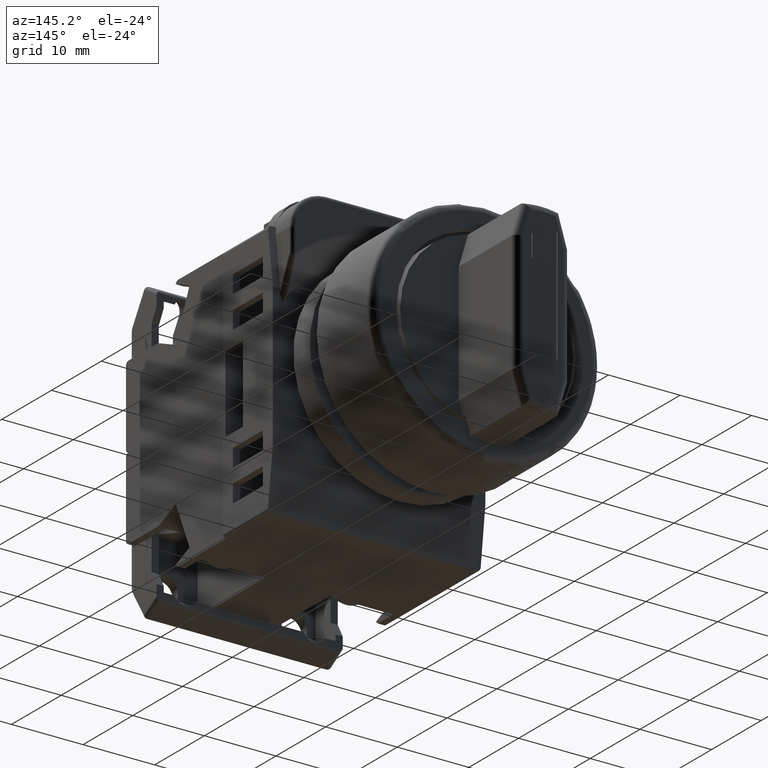
[diagram: clean part render]
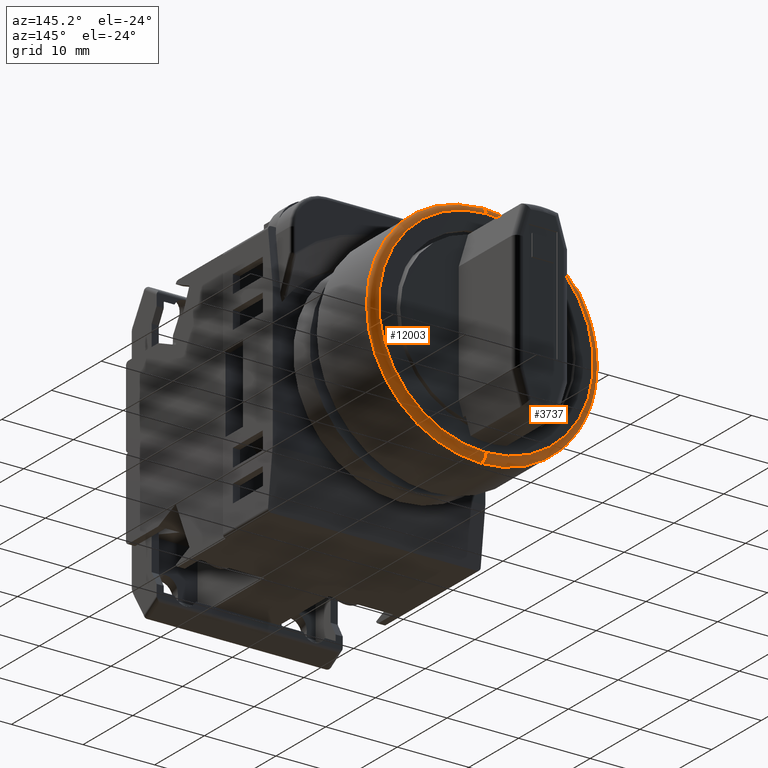
[diagram: same view with one multi-face feature highlighted, each face labeled with its STEP entity id]
A machine part, auxiliary view. The highlighted faces form ONE feature: a constant-radius fillet chain: 2 tangent blend faces with common blend radius 1 mm. The faces share edges in the B-rep.
Their STEP definitions:
[1] entity #12003 (Torus):
#864 = ORIENTED_EDGE ( 'NONE', *, *, #9992, .F. ) ;
#964 = DIRECTION ( 'NONE',  ( 0.0000000000000000000, 0.0000000000000000000, -1.000000000000000000 ) ) ;
#1444 = VERTEX_POINT ( 'NONE', #2968 ) ;
#1462 = ORIENTED_EDGE ( 'NONE', *, *, #4716, .F. ) ;
#1672 = ORIENTED_EDGE ( 'NONE', *, *, #16797, .F. ) ;
#2095 = CARTESIAN_POINT ( 'NONE',  ( 0.0000000000000000000, 9.999999999999998200, -16.00000000000000000 ) ) ;
#2968 = CARTESIAN_POINT ( 'NONE',  ( 1.898202538678397200E-015, 11.00000000000000000, 15.00000000000000000 ) ) ;
#3209 = VERTEX_POINT ( 'NONE', #16188 ) ;
#3252 = AXIS2_PLACEMENT_3D ( 'NONE', #3963, #13320, #5319 ) ;
#3531 = CIRCLE ( 'NONE', #3252, 15.00000000000000000 ) ;
#3550 = DIRECTION ( 'NONE',  ( 0.0000000000000000000, -1.000000000000000000, 0.0000000000000000000 ) ) ;
#3826 = CARTESIAN_POINT ( 'NONE',  ( 1.836970198721029600E-015, 9.999999999999998200, 15.00000000000000000 ) ) ;
#3963 = CARTESIAN_POINT ( 'NONE',  ( 0.0000000000000000000, 11.00000000000000000, 0.0000000000000000000 ) ) ;
#4588 = FACE_OUTER_BOUND ( 'NONE', #4872, .T. ) ;
#4716 = EDGE_CURVE ( 'NONE', #7763, #3209, #13369, .T. ) ;
#4872 = EDGE_LOOP ( 'NONE', ( #1672, #7593, #1462, #864 ) ) ;
#5168 = DIRECTION ( 'NONE',  ( -1.224646799147351500E-016, 0.0000000000000000000, -1.000000000000000000 ) ) ;
#5319 = DIRECTION ( 'NONE',  ( 0.0000000000000000000, 0.0000000000000000000, -1.000000000000000000 ) ) ;
#5990 = CARTESIAN_POINT ( 'NONE',  ( 0.0000000000000000000, 9.999999999999998200, -15.00000000000000000 ) ) ;
#6098 = DIRECTION ( 'NONE',  ( 0.0000000000000000000, -1.000000000000000000, 0.0000000000000000000 ) ) ;
#6101 = CARTESIAN_POINT ( 'NONE',  ( 0.0000000000000000000, 11.00000000000000000, -15.00000000000000000 ) ) ;
#7333 = DIRECTION ( 'NONE',  ( 0.0000000000000000000, 0.0000000000000000000, 1.000000000000000000 ) ) ;
#7593 = ORIENTED_EDGE ( 'NONE', *, *, #11529, .T. ) ;
#7763 = VERTEX_POINT ( 'NONE', #2095 ) ;
#8996 = CARTESIAN_POINT ( 'NONE',  ( 0.0000000000000000000, 9.999999999999998200, 0.0000000000000000000 ) ) ;
#9171 = VERTEX_POINT ( 'NONE', #6101 ) ;
#9992 = EDGE_CURVE ( 'NONE', #9171, #7763, #10720, .T. ) ;
#10720 = CIRCLE ( 'NONE', #13004, 1.000000000000000900 ) ;
#11529 = EDGE_CURVE ( 'NONE', #1444, #3209, #16054, .T. ) ;
#11817 = AXIS2_PLACEMENT_3D ( 'NONE', #3826, #13174, #5168 ) ;
#12003 = ADVANCED_FACE ( 'NONE', ( #4588 ), #14856, .T. ) ;
#13004 = AXIS2_PLACEMENT_3D ( 'NONE', #5990, #15351, #7333 ) ;
#13014 = AXIS2_PLACEMENT_3D ( 'NONE', #14134, #6098, #15453 ) ;
#13174 = DIRECTION ( 'NONE',  ( 1.000000000000000000, 0.0000000000000000000, -1.224646799147353200E-016 ) ) ;
#13320 = DIRECTION ( 'NONE',  ( -0.0000000000000000000, 1.000000000000000000, -0.0000000000000000000 ) ) ;
#13369 = CIRCLE ( 'NONE', #13014, 16.00000000000000000 ) ;
#14134 = CARTESIAN_POINT ( 'NONE',  ( 0.0000000000000000000, 9.999999999999998200, 0.0000000000000000000 ) ) ;
#14856 = TOROIDAL_SURFACE ( 'NONE', #16403, 15.00000000000000000, 1.000000000000000000 ) ;
#15351 = DIRECTION ( 'NONE',  ( -1.000000000000000000, -0.0000000000000000000, -0.0000000000000000000 ) ) ;
#15453 = DIRECTION ( 'NONE',  ( 0.0000000000000000000, 0.0000000000000000000, -1.000000000000000000 ) ) ;
#16054 = CIRCLE ( 'NONE', #11817, 1.000000000000000900 ) ;
#16188 = CARTESIAN_POINT ( 'NONE',  ( 1.959434878635765100E-015, 9.999999999999998200, 16.00000000000000000 ) ) ;
#16403 = AXIS2_PLACEMENT_3D ( 'NONE', #8996, #3550, #964 ) ;
#16797 = EDGE_CURVE ( 'NONE', #1444, #9171, #3531, .T. ) ;
[2] entity #3737 (Torus):
#1046 = CARTESIAN_POINT ( 'NONE',  ( 0.0000000000000000000, 9.999999999999998200, 0.0000000000000000000 ) ) ;
#1444 = VERTEX_POINT ( 'NONE', #2968 ) ;
#1960 = ORIENTED_EDGE ( 'NONE', *, *, #11479, .F. ) ;
#2095 = CARTESIAN_POINT ( 'NONE',  ( 0.0000000000000000000, 9.999999999999998200, -16.00000000000000000 ) ) ;
#2394 = DIRECTION ( 'NONE',  ( 0.0000000000000000000, 0.0000000000000000000, -1.000000000000000000 ) ) ;
#2860 = EDGE_CURVE ( 'NONE', #9171, #1444, #7673, .T. ) ;
#2968 = CARTESIAN_POINT ( 'NONE',  ( 1.898202538678397200E-015, 11.00000000000000000, 15.00000000000000000 ) ) ;
#3209 = VERTEX_POINT ( 'NONE', #16188 ) ;
#3378 = ORIENTED_EDGE ( 'NONE', *, *, #9992, .T. ) ;
#3737 = ADVANCED_FACE ( 'NONE', ( #15569 ), #15151, .T. ) ;
#3826 = CARTESIAN_POINT ( 'NONE',  ( 1.836970198721029600E-015, 9.999999999999998200, 15.00000000000000000 ) ) ;
#4660 = CARTESIAN_POINT ( 'NONE',  ( 0.0000000000000000000, 11.00000000000000000, 0.0000000000000000000 ) ) ;
#5168 = DIRECTION ( 'NONE',  ( -1.224646799147351500E-016, 0.0000000000000000000, -1.000000000000000000 ) ) ;
#5330 = EDGE_LOOP ( 'NONE', ( #6544, #14226, #3378, #1960 ) ) ;
#5380 = AXIS2_PLACEMENT_3D ( 'NONE', #15111, #8385, #7085 ) ;
#5990 = CARTESIAN_POINT ( 'NONE',  ( 0.0000000000000000000, 9.999999999999998200, -15.00000000000000000 ) ) ;
#5996 = DIRECTION ( 'NONE',  ( 0.0000000000000000000, 0.0000000000000000000, -1.000000000000000000 ) ) ;
#6101 = CARTESIAN_POINT ( 'NONE',  ( 0.0000000000000000000, 11.00000000000000000, -15.00000000000000000 ) ) ;
#6544 = ORIENTED_EDGE ( 'NONE', *, *, #11529, .F. ) ;
#7085 = DIRECTION ( 'NONE',  ( 0.0000000000000000000, 0.0000000000000000000, -1.000000000000000000 ) ) ;
#7333 = DIRECTION ( 'NONE',  ( 0.0000000000000000000, 0.0000000000000000000, 1.000000000000000000 ) ) ;
#7673 = CIRCLE ( 'NONE', #16018, 15.00000000000000000 ) ;
#7763 = VERTEX_POINT ( 'NONE', #2095 ) ;
#8385 = DIRECTION ( 'NONE',  ( 0.0000000000000000000, -1.000000000000000000, 0.0000000000000000000 ) ) ;
#9171 = VERTEX_POINT ( 'NONE', #6101 ) ;
#9357 = CIRCLE ( 'NONE', #9991, 16.00000000000000000 ) ;
#9991 = AXIS2_PLACEMENT_3D ( 'NONE', #1046, #10418, #2394 ) ;
#9992 = EDGE_CURVE ( 'NONE', #9171, #7763, #10720, .T. ) ;
#10418 = DIRECTION ( 'NONE',  ( 0.0000000000000000000, -1.000000000000000000, 0.0000000000000000000 ) ) ;
#10720 = CIRCLE ( 'NONE', #13004, 1.000000000000000900 ) ;
#11479 = EDGE_CURVE ( 'NONE', #3209, #7763, #9357, .T. ) ;
#11529 = EDGE_CURVE ( 'NONE', #1444, #3209, #16054, .T. ) ;
#11817 = AXIS2_PLACEMENT_3D ( 'NONE', #3826, #13174, #5168 ) ;
#13004 = AXIS2_PLACEMENT_3D ( 'NONE', #5990, #15351, #7333 ) ;
#13174 = DIRECTION ( 'NONE',  ( 1.000000000000000000, 0.0000000000000000000, -1.224646799147353200E-016 ) ) ;
#14025 = DIRECTION ( 'NONE',  ( -0.0000000000000000000, 1.000000000000000000, -0.0000000000000000000 ) ) ;
#14226 = ORIENTED_EDGE ( 'NONE', *, *, #2860, .F. ) ;
#15111 = CARTESIAN_POINT ( 'NONE',  ( 0.0000000000000000000, 9.999999999999998200, 0.0000000000000000000 ) ) ;
#15151 = TOROIDAL_SURFACE ( 'NONE', #5380, 15.00000000000000000, 1.000000000000000000 ) ;
#15351 = DIRECTION ( 'NONE',  ( -1.000000000000000000, -0.0000000000000000000, -0.0000000000000000000 ) ) ;
#15569 = FACE_OUTER_BOUND ( 'NONE', #5330, .T. ) ;
#16018 = AXIS2_PLACEMENT_3D ( 'NONE', #4660, #14025, #5996 ) ;
#16054 = CIRCLE ( 'NONE', #11817, 1.000000000000000900 ) ;
#16188 = CARTESIAN_POINT ( 'NONE',  ( 1.959434878635765100E-015, 9.999999999999998200, 16.00000000000000000 ) ) ;